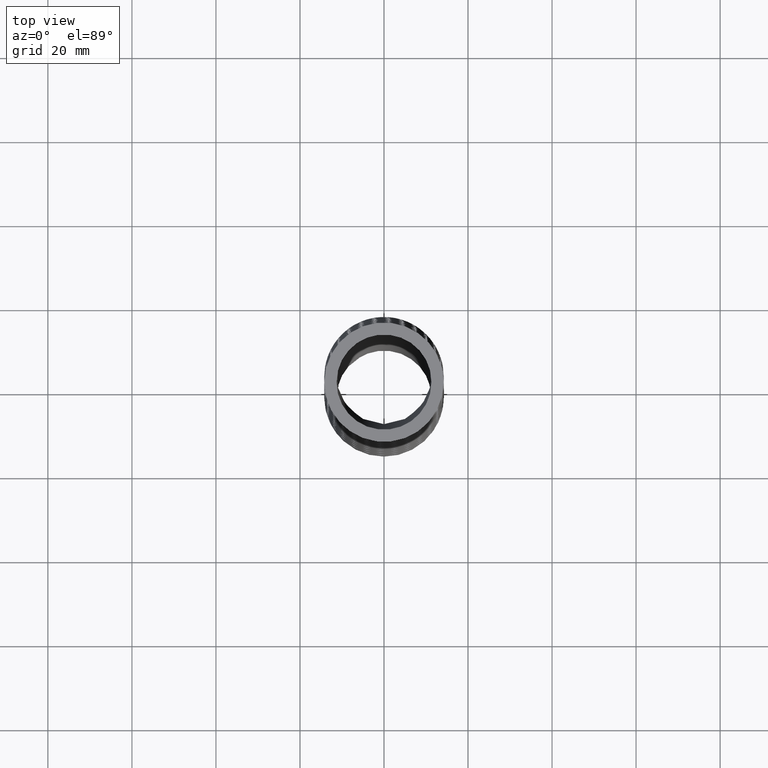
[diagram: clean part render]
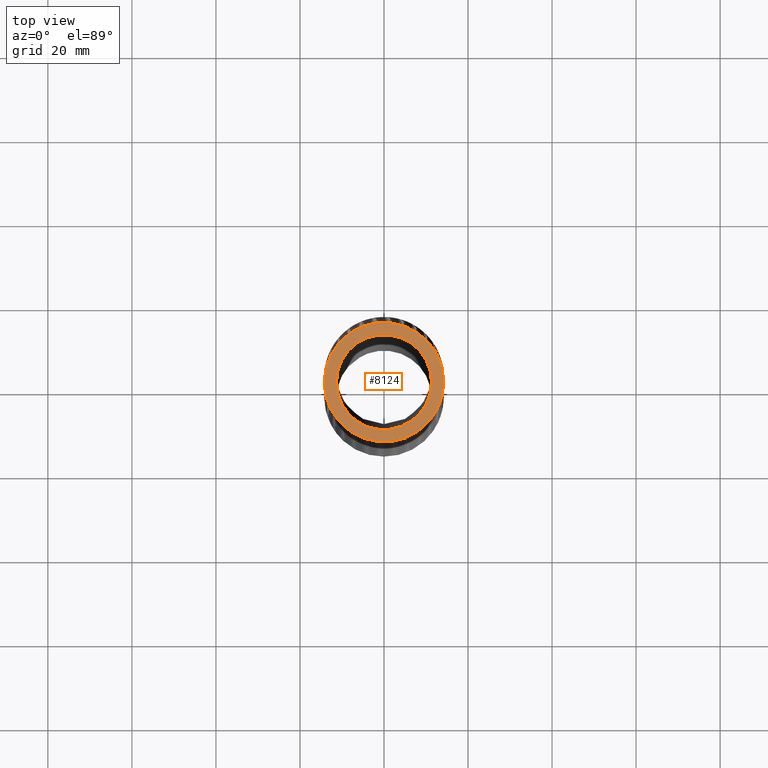
[diagram: same view with one face highlighted and labeled with its STEP entity id]
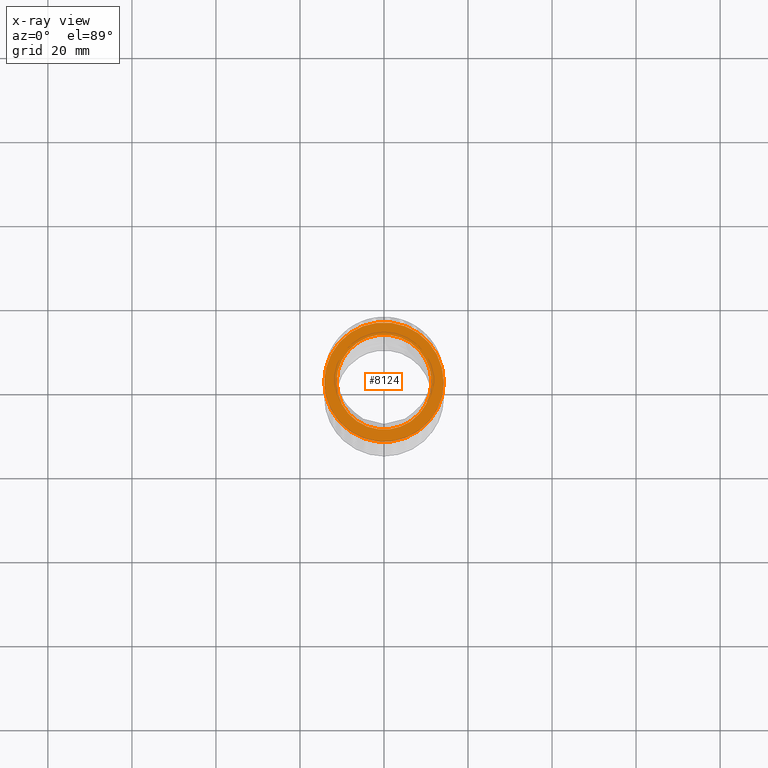
[diagram: x-ray of the same camera — body ghosted, the highlighted face saturated]
A machine part, top view. The second image highlights one B-rep face of the part: STEP entity #8124.
The next image is the same camera in x-ray: the body ghosted, the highlighted face saturated — about 0% of this face is hidden behind the body in this view.
In plain terms, the highlighted planar face has unit normal (0, 0, 1).
Its self-contained STEP definition (entity closure, byte-faithful):
#3698 = FACE_OUTER_BOUND ( 'NONE', #8387, .T. ) ;
#3699 = FACE_BOUND ( 'NONE', #8122, .T. ) ;
#3725 = DIRECTION ( 'NONE',  ( 1.000000000000000000, 0.0000000000000000000, 0.0000000000000000000 ) ) ;
#3726 = DIRECTION ( 'NONE',  ( 0.0000000000000000000, 0.0000000000000000000, 1.000000000000000000 ) ) ;
#3727 = CARTESIAN_POINT ( 'NONE',  ( 0.0000000000000000000, 0.0000000000000000000, 0.0000000000000000000 ) ) ;
#3728 = AXIS2_PLACEMENT_3D ( 'NONE', #3727, #3726, #3725 ) ;
#3729 = PLANE ( 'NONE',  #3728 ) ;
#3857 = CIRCLE ( 'NONE', #3886, 0.5600000000000000500 ) ;
#3883 = DIRECTION ( 'NONE',  ( 1.000000000000000000, 0.0000000000000000000, 0.0000000000000000000 ) ) ;
#3884 = DIRECTION ( 'NONE',  ( 0.0000000000000000000, 0.0000000000000000000, 1.000000000000000000 ) ) ;
#3885 = CARTESIAN_POINT ( 'NONE',  ( 0.0000000000000000000, 0.0000000000000000000, 0.0000000000000000000 ) ) ;
#3886 = AXIS2_PLACEMENT_3D ( 'NONE', #3885, #3884, #3883 ) ;
#5882 = DIRECTION ( 'NONE',  ( 1.000000000000000000, 0.0000000000000000000, 0.0000000000000000000 ) ) ;
#5883 = DIRECTION ( 'NONE',  ( 0.0000000000000000000, 0.0000000000000000000, 1.000000000000000000 ) ) ;
#5884 = CARTESIAN_POINT ( 'NONE',  ( 0.0000000000000000000, 0.0000000000000000000, 0.0000000000000000000 ) ) ;
#5885 = AXIS2_PLACEMENT_3D ( 'NONE', #5884, #5883, #5882 ) ;
#5886 = CIRCLE ( 'NONE', #5885, 0.4450000000000000100 ) ;
#8113 = ORIENTED_EDGE ( 'NONE', *, *, #8430, .F. ) ;
#8119 = ORIENTED_EDGE ( 'NONE', *, *, #11349, .F. ) ;
#8122 = EDGE_LOOP ( 'NONE', ( #8119, #8113 ) ) ;
#8124 = ADVANCED_FACE ( 'NONE', ( #3699, #3698 ), #3729, .T. ) ;
#8131 = EDGE_CURVE ( 'NONE', #11344, #11322, #3857, .T. ) ;
#8168 = ORIENTED_EDGE ( 'NONE', *, *, #11342, .T. ) ;
#8387 = EDGE_LOOP ( 'NONE', ( #8395, #8168 ) ) ;
#8395 = ORIENTED_EDGE ( 'NONE', *, *, #8131, .T. ) ;
#8430 = EDGE_CURVE ( 'NONE', #11364, #11340, #5886, .T. ) ;
#11322 = VERTEX_POINT ( 'NONE', #13839 ) ;
#11340 = VERTEX_POINT ( 'NONE', #13912 ) ;
#11342 = EDGE_CURVE ( 'NONE', #11322, #11344, #13974, .T. ) ;
#11344 = VERTEX_POINT ( 'NONE', #13965 ) ;
#11349 = EDGE_CURVE ( 'NONE', #11340, #11364, #13986, .T. ) ;
#11364 = VERTEX_POINT ( 'NONE', #14134 ) ;
#13839 = CARTESIAN_POINT ( 'NONE',  ( -0.5600000000000000500, 6.858022075225177600E-017, 0.0000000000000000000 ) ) ;
#13912 = CARTESIAN_POINT ( 'NONE',  ( 0.4450000000000000100, 0.0000000000000000000, 0.0000000000000000000 ) ) ;
#13917 = CARTESIAN_POINT ( 'NONE',  ( 0.0000000000000000000, 0.0000000000000000000, 0.0000000000000000000 ) ) ;
#13965 = CARTESIAN_POINT ( 'NONE',  ( 0.5600000000000000500, 0.0000000000000000000, 0.0000000000000000000 ) ) ;
#13971 = DIRECTION ( 'NONE',  ( 1.000000000000000000, 0.0000000000000000000, 0.0000000000000000000 ) ) ;
#13972 = DIRECTION ( 'NONE',  ( 0.0000000000000000000, 0.0000000000000000000, 1.000000000000000000 ) ) ;
#13973 = AXIS2_PLACEMENT_3D ( 'NONE', #13917, #13972, #13971 ) ;
#13974 = CIRCLE ( 'NONE', #13973, 0.5600000000000000500 ) ;
#13981 = DIRECTION ( 'NONE',  ( 1.000000000000000000, 0.0000000000000000000, 0.0000000000000000000 ) ) ;
#13982 = DIRECTION ( 'NONE',  ( 0.0000000000000000000, 0.0000000000000000000, 1.000000000000000000 ) ) ;
#13983 = CARTESIAN_POINT ( 'NONE',  ( 0.0000000000000000000, 0.0000000000000000000, 0.0000000000000000000 ) ) ;
#13985 = AXIS2_PLACEMENT_3D ( 'NONE', #13983, #13982, #13981 ) ;
#13986 = CIRCLE ( 'NONE', #13985, 0.4450000000000000100 ) ;
#14134 = CARTESIAN_POINT ( 'NONE',  ( -0.4450000000000000100, 5.449678256205722000E-017, 0.0000000000000000000 ) ) ;